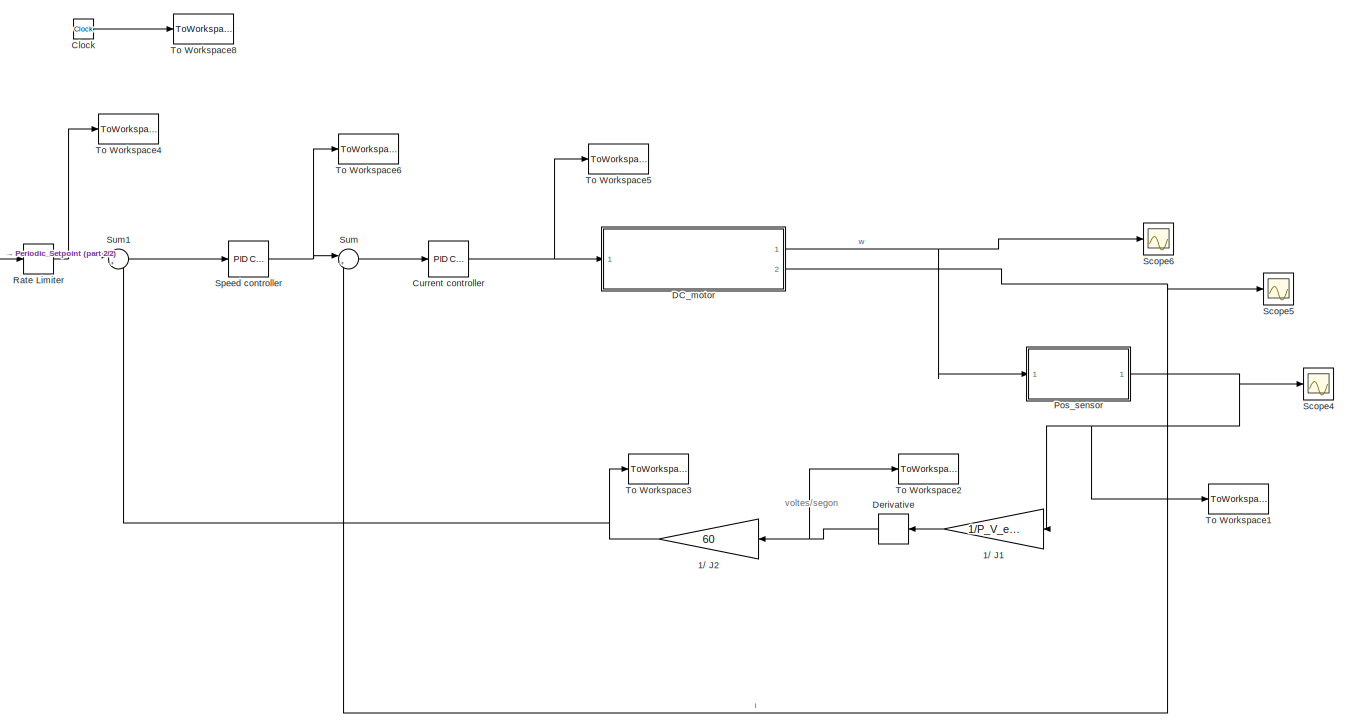
[diagram: root canvas - part 1/2, most of the canvas]
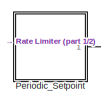
[diagram: root canvas - part 2/2, middle left region]
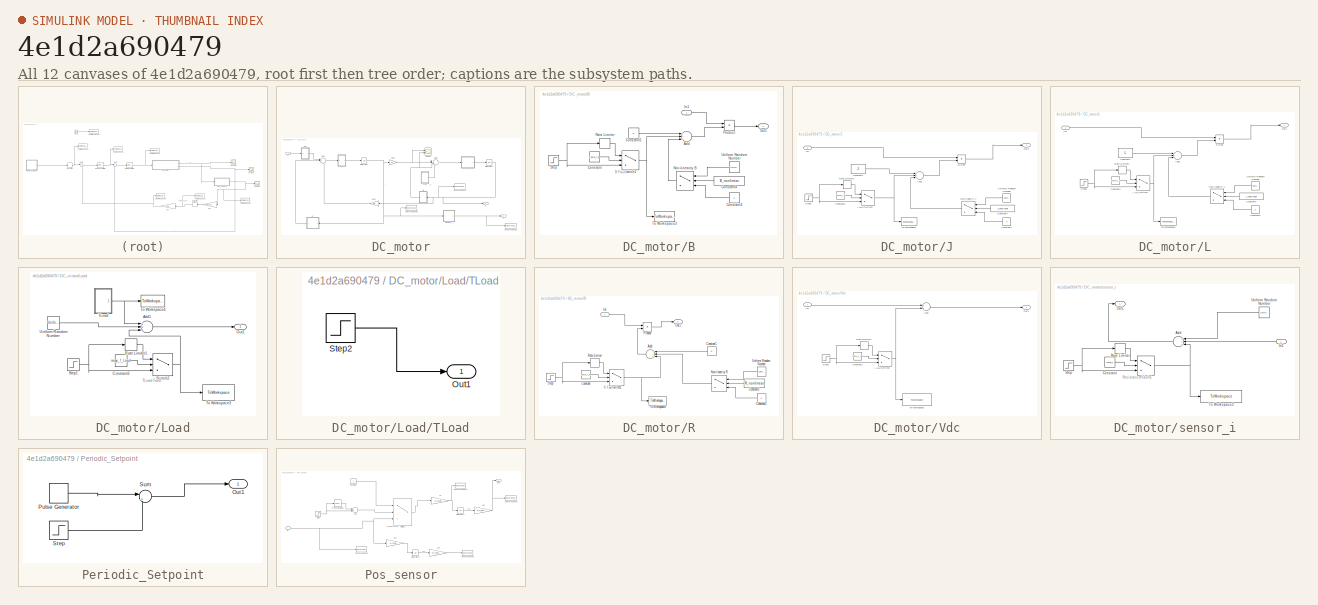
[diagram: thumbnail index - all 12 canvases of the model, root first then tree order]
MODEL slx_4e1d2a690479
KIND model
CONFIG AbsTol = auto
CONFIG EnableMultiTasking = off
CONFIG FixedStep = auto
CONFIG MaxStep = auto
CONFIG MinStep = auto
CONFIG RelTol = 1e-3
CONFIG SampleTimeConstraint = Unconstrained
CONFIG Solver = VariableStepAuto
CONFIG SolverName = VariableStepAuto
CONFIG StartTime = 0.0
CONFIG StopTime = 100
BLOCK [Gain] 1// J1
  Gain = 1/P_V_encoder
  OutDataTypeStr = Inherit: Inherit via internal rule
  ParamDataTypeStr = Inherit: Inherit via internal rule
  SaturateOnIntegerOverflow = off
BLOCK [Gain] 1// J2
  Gain = 60
  OutDataTypeStr = Inherit: Inherit via internal rule
  ParamDataTypeStr = Inherit: Inherit via internal rule
  SaturateOnIntegerOverflow = off
BLOCK [Clock] Clock
BLOCK [Reference] Current controller  REF=simulink/Continuous/PID Controller
  Ports = [1, 1]
  SourceBlock = simulink/Continuous/PID Controller
  SourceProductBaseCode = SL
  SourceProductName = Simulink
  SourceType = PID 1dof
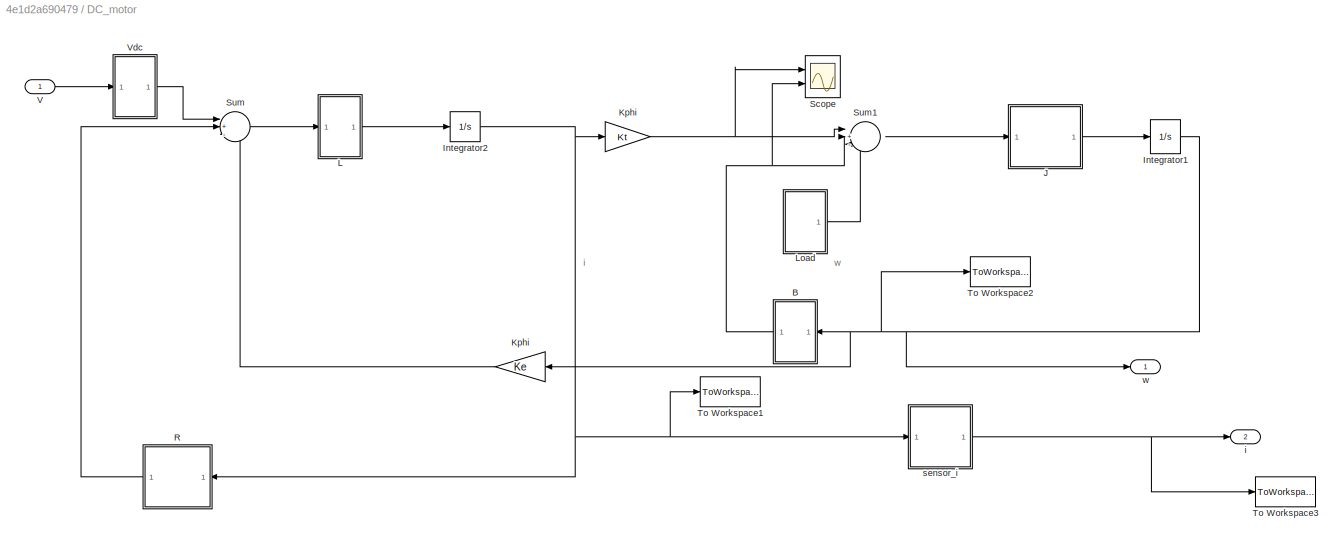
BLOCK [SubSystem] DC_motor
  Ports = [1, 2]
  RequestExecContextInheritance = off
BLOCK [SubSystem] DC_motor/B
  Ports = [1, 1]
  RequestExecContextInheritance = off
  Tag = R
BLOCK [Sum] DC_motor/B/Add
  InputSameDT = off
  Inputs = +++
  OutDataTypeStr = Inherit: Inherit via internal rule
  Ports = [3, 1]
  SaturateOnIntegerOverflow = off
BLOCK [Constant] DC_motor/B/Constant
  Value = ramp_f_B
BLOCK [Constant] DC_motor/B/Constant1
  Value = b
BLOCK [Constant] DC_motor/B/Constant3
  Value = 0
BLOCK [Constant] DC_motor/B/Constant4
  Value = B_nonlinear
BLOCK [Inport] DC_motor/B/In1
  IconDisplay = Port number
BLOCK [Switch] DC_motor/B/Non-linearity B
  Criteria = u2 > Threshold
  InputSameDT = off
  SaturateOnIntegerOverflow = off
BLOCK [Outport] DC_motor/B/Out1
  IconDisplay = Port number
BLOCK [Product] DC_motor/B/Product
  InputSameDT = off
  OutDataTypeStr = Inherit: Inherit via internal rule
  Ports = [2, 1]
  RndMeth = Floor
  SaturateOnIntegerOverflow = off
BLOCK [RateLimiter] DC_motor/B/Rate Limiter
  FallingSlewLimit = -vel_B*b
  RisingSlewLimit = vel_B*b
  SampleTimeMode = inherited
BLOCK [Step] DC_motor/B/Step
  After = B_fault
  SampleTime = Tsd
  Tag = Rpm Sensor Flow
  Time = t_fault
BLOCK [Switch] DC_motor/B/Switch1
  Criteria = u2 > Threshold
  InputSameDT = off
  SaturateOnIntegerOverflow = off
BLOCK [ToWorkspace] DC_motor/B/To Workspace3
  FixptAsFi = on
  MaxDataPoints = inf
  Ports = [1]
  SampleTime = Tsd
  VariableName = V_B_fault
BLOCK [UniformRandomNumber] DC_motor/B/Uniform Random Number
  Maximum = tol_B*b
  Minimum = -tol_B*b
  SampleTime = Tsd
BLOCK [Integrator] DC_motor/Integrator1
  Ports = [1, 1]
BLOCK [Integrator] DC_motor/Integrator2
  Ports = [1, 1]
BLOCK [SubSystem] DC_motor/J
  Ports = [1, 1]
  RequestExecContextInheritance = off
BLOCK [Sum] DC_motor/J/Add1
  InputSameDT = off
  Inputs = +++
  OutDataTypeStr = Inherit: Inherit via internal rule
  Ports = [3, 1]
  SaturateOnIntegerOverflow = off
BLOCK [Constant] DC_motor/J/Constant1
  Value = J
BLOCK [Constant] DC_motor/J/Constant2
  Value = ramp_f_J
BLOCK [Constant] DC_motor/J/Constant3
  Value = 0
BLOCK [Constant] DC_motor/J/Constant4
  Value = J_nonlinear
BLOCK [Product] DC_motor/J/Divide
  InputSameDT = off
  Inputs = */
  OutDataTypeStr = Inherit: Inherit via internal rule
  Ports = [2, 1]
  RndMeth = Floor
  SaturateOnIntegerOverflow = off
BLOCK [Inport] DC_motor/J/In1
  IconDisplay = Port number
BLOCK [Switch] DC_motor/J/Non-linearity J
  Criteria = u2 > Threshold
  InputSameDT = off
  SaturateOnIntegerOverflow = off
BLOCK [Outport] DC_motor/J/Out1
  IconDisplay = Port number
BLOCK [RateLimiter] DC_motor/J/Rate Limiter1
  FallingSlewLimit = -vel_J*J
  RisingSlewLimit = vel_J*J
  SampleTimeMode = inherited
BLOCK [Step] DC_motor/J/Step1
  After = J_fault
  SampleTime = Tsc
  Tag = Rpm Sensor Flow
  Time = t_fault
BLOCK [Switch] DC_motor/J/Switch2
  Criteria = u2 > Threshold
  InputSameDT = off
  SaturateOnIntegerOverflow = off
BLOCK [ToWorkspace] DC_motor/J/To Workspace3
  FixptAsFi = on
  MaxDataPoints = inf
  Ports = [1]
  SampleTime = Tsd
  VariableName = V_J_fault
BLOCK [UniformRandomNumber] DC_motor/J/Uniform Random Number
  Maximum = tol_J*J
  Minimum = -tol_J*J
  SampleTime = Tsd
BLOCK [Gain] DC_motor/Kphi
  Gain = Kt
  OutDataTypeStr = Inherit: Inherit via internal rule
  ParamDataTypeStr = Inherit: Inherit via internal rule
  SaturateOnIntegerOverflow = off
BLOCK [Gain] DC_motor/Kphi 
  Gain = Ke
  OutDataTypeStr = Inherit: Inherit via internal rule
  ParamDataTypeStr = Inherit: Inherit via internal rule
  SaturateOnIntegerOverflow = off
BLOCK [SubSystem] DC_motor/L
  Ports = [1, 1]
  RequestExecContextInheritance = off
BLOCK [Sum] DC_motor/L/Add1
  InputSameDT = off
  Inputs = +++
  OutDataTypeStr = Inherit: Inherit via internal rule
  Ports = [3, 1]
  SaturateOnIntegerOverflow = off
BLOCK [Constant] DC_motor/L/Constant1
  Value = L
BLOCK [Constant] DC_motor/L/Constant2
  Value = ramp_f_L
BLOCK [Constant] DC_motor/L/Constant3
  Value = 0
BLOCK [Constant] DC_motor/L/Constant4
  Value = L_nonlinear
BLOCK [Product] DC_motor/L/Divide
  InputSameDT = off
  Inputs = */
  OutDataTypeStr = Inherit: Inherit via internal rule
  Ports = [2, 1]
  RndMeth = Floor
  SaturateOnIntegerOverflow = off
BLOCK [Inport] DC_motor/L/In1
  IconDisplay = Port number
BLOCK [Switch] DC_motor/L/Non-linearity L
  Criteria = u2 > Threshold
  InputSameDT = off
  SaturateOnIntegerOverflow = off
BLOCK [Outport] DC_motor/L/Out1
  IconDisplay = Port number
BLOCK [RateLimiter] DC_motor/L/Rate Limiter1
  FallingSlewLimit = -vel_L*L
  RisingSlewLimit = vel_L*L
  SampleTimeMode = inherited
BLOCK [Step] DC_motor/L/Step1
  After = L_fault
  SampleTime = Tsc
  Tag = Rpm Sensor Flow
  Time = t_fault
BLOCK [Switch] DC_motor/L/Switch2
  Criteria = u2 > Threshold
  InputSameDT = off
  SaturateOnIntegerOverflow = off
BLOCK [ToWorkspace] DC_motor/L/To Workspace3
  FixptAsFi = on
  MaxDataPoints = inf
  Ports = [1]
  SampleTime = Tsd
  VariableName = V_L_fault
BLOCK [UniformRandomNumber] DC_motor/L/Uniform Random Number
  Maximum = tol_L*L
  Minimum = -tol_L*L
  SampleTime = Tsd
BLOCK [SubSystem] DC_motor/Load
  Ports = [0, 1]
  RequestExecContextInheritance = off
BLOCK [Sum] DC_motor/Load/Add1
  InputSameDT = off
  Inputs = +++
  OutDataTypeStr = Inherit: Inherit via internal rule
  Ports = [3, 1]
  SaturateOnIntegerOverflow = off
BLOCK [Constant] DC_motor/Load/Constant2
  Value = ramp_f_Load
BLOCK [Outport] DC_motor/Load/Out1
  IconDisplay = Port number
BLOCK [RateLimiter] DC_motor/Load/Rate Limiter1
  FallingSlewLimit = -vel_Load*Load_fault
  RisingSlewLimit = vel_Load*Load_fault
  SampleTimeMode = inherited
BLOCK [Step] DC_motor/Load/Step1
  After = Load_fault
  SampleTime = Tsd
  Tag = Rpm Sensor Flow
  Time = t_fault
BLOCK [Switch] DC_motor/Load/Switch2
  Criteria = u2 > Threshold
  InputSameDT = off
  SaturateOnIntegerOverflow = off
BLOCK [SubSystem] DC_motor/Load/TLoad
  Ports = [0, 1]
  RequestExecContextInheritance = off
BLOCK [Outport] DC_motor/Load/TLoad/Out1
  IconDisplay = Port number
BLOCK [Step] DC_motor/Load/TLoad/Step2
  After = 0
  SampleTime = Tsd
  Tag = Rpm Sensor Flow
BLOCK [ToWorkspace] DC_motor/Load/To Workspace3
  FixptAsFi = on
  MaxDataPoints = inf
  Ports = [1]
  SampleTime = Tsd
  VariableName = V_Load_fault
BLOCK [ToWorkspace] DC_motor/Load/To Workspace4
  FixptAsFi = on
  MaxDataPoints = inf
  Ports = [1]
  SampleTime = Tsd
  VariableName = Tload
BLOCK [UniformRandomNumber] DC_motor/Load/Uniform Random Number
  Maximum = delta_load
  Minimum = -delta_load
  SampleTime = Tsd
BLOCK [SubSystem] DC_motor/R
  Ports = [1, 1]
  RequestExecContextInheritance = off
  Tag = R
BLOCK [Sum] DC_motor/R/Add
  InputSameDT = off
  Inputs = +++
  OutDataTypeStr = Inherit: Inherit via internal rule
  Ports = [3, 1]
  SaturateOnIntegerOverflow = off
BLOCK [Constant] DC_motor/R/Constant
  Value = ramp_f_R
BLOCK [Constant] DC_motor/R/Constant1
  Value = R
BLOCK [Constant] DC_motor/R/Constant2
  Value = 0
BLOCK [Constant] DC_motor/R/Constant3
  Value = R_nonlinear
BLOCK [Inport] DC_motor/R/In1
  IconDisplay = Port number
BLOCK [Switch] DC_motor/R/Non-linearity R
  Criteria = u2 > Threshold
  InputSameDT = off
  SaturateOnIntegerOverflow = off
BLOCK [Outport] DC_motor/R/Out1
  IconDisplay = Port number
BLOCK [Product] DC_motor/R/Product
  InputSameDT = off
  OutDataTypeStr = Inherit: Inherit via internal rule
  Ports = [2, 1]
  RndMeth = Floor
  SaturateOnIntegerOverflow = off
BLOCK [RateLimiter] DC_motor/R/Rate Limiter
  FallingSlewLimit = -vel_R
  RisingSlewLimit = vel_R
  SampleTimeMode = inherited
BLOCK [Step] DC_motor/R/Step
  After = R_fault
  SampleTime = Tsc
  Tag = Rpm Sensor Flow
  Time = t_fault
BLOCK [Switch] DC_motor/R/Switch1
  Criteria = u2 > Threshold
  InputSameDT = off
  SaturateOnIntegerOverflow = off
BLOCK [ToWorkspace] DC_motor/R/To Workspace3
  FixptAsFi = on
  MaxDataPoints = inf
  Ports = [1]
  SampleTime = Tsd
  VariableName = V_R_fault
BLOCK [UniformRandomNumber] DC_motor/R/Uniform Random Number
  Maximum = tol_R*R
  Minimum = -tol_R*R
  SampleTime = Tsd
BLOCK [Scope] DC_motor/Scope
  Floating = off
  NumInputPorts = 2
  Ports = [2]
  ScopeSpecificationString = Simulink.scopes.TimeScopeBlockCfg('CurrentConfiguration', extmgr.ConfigurationSet(extmgr.Configuration('Core','General UI',true),extmgr.Configuration('Core','Source UI',true),extmgr.Configuration('Sources','WiredSimulink',true,'DataLoggingVariableName','ScopeData1'),extmgr.Configuration('Visuals','Time Domain',true,'SerializedDisplays',{struct('MinYLimReal','-0.327','MaxYLimReal','0.38541','YLabel...<+1714ch>
BLOCK [Sum] DC_motor/Sum
  IconShape = round
  InputSameDT = off
  Inputs = |+--
  OutDataTypeStr = Inherit: Inherit via internal rule
  Ports = [3, 1]
  SaturateOnIntegerOverflow = off
BLOCK [Sum] DC_motor/Sum1
  IconShape = round
  InputSameDT = off
  Inputs = |+--
  OutDataTypeStr = Inherit: Inherit via internal rule
  Ports = [3, 1]
  SaturateOnIntegerOverflow = off
BLOCK [ToWorkspace] DC_motor/To Workspace1
  FixptAsFi = on
  MaxDataPoints = inf
  Ports = [1]
  SampleTime = Tsd
  VariableName = i
BLOCK [ToWorkspace] DC_motor/To Workspace2
  FixptAsFi = on
  MaxDataPoints = inf
  Ports = [1]
  SampleTime = Tsd
  VariableName = w_rads
BLOCK [ToWorkspace] DC_motor/To Workspace3
  FixptAsFi = on
  MaxDataPoints = inf
  Ports = [1]
  SampleTime = Tsd
  VariableName = i_m
BLOCK [Inport] DC_motor/V
  IconDisplay = Port number
BLOCK [SubSystem] DC_motor/Vdc
  Ports = [1, 1]
  RequestExecContextInheritance = off
BLOCK [Sum] DC_motor/Vdc/Add1
  InputSameDT = off
  OutDataTypeStr = Inherit: Inherit via internal rule
  Ports = [2, 1]
  SaturateOnIntegerOverflow = off
BLOCK [Constant] DC_motor/Vdc/Constant2
  Value = ramp_f_Vdc
BLOCK [Inport] DC_motor/Vdc/In1
  IconDisplay = Port number
BLOCK [Outport] DC_motor/Vdc/Out1
  IconDisplay = Port number
BLOCK [RateLimiter] DC_motor/Vdc/Rate Limiter1
  FallingSlewLimit = -vel_Vdc
  RisingSlewLimit = vel_Vdc
  SampleTimeMode = inherited
BLOCK [Step] DC_motor/Vdc/Step1
  After = Vdc_fault
  SampleTime = Tsc
  Tag = Rpm Sensor Flow
  Time = t_fault
BLOCK [Switch] DC_motor/Vdc/Switch2
  Criteria = u2 > Threshold
  InputSameDT = off
  SaturateOnIntegerOverflow = off
BLOCK [ToWorkspace] DC_motor/Vdc/To Workspace3
  FixptAsFi = on
  MaxDataPoints = inf
  Ports = [1]
  SampleTime = Tsd
  VariableName = V_Vdc_fault
BLOCK [Outport] DC_motor/i
  IconDisplay = Port number
  Port = 2
BLOCK [SubSystem] DC_motor/sensor_i
  Ports = [1, 1]
  RequestExecContextInheritance = off
  Tag = R
BLOCK [Sum] DC_motor/sensor_i/Add
  InputSameDT = off
  Inputs = +++
  OutDataTypeStr = Inherit: Inherit via internal rule
  Ports = [3, 1]
  SaturateOnIntegerOverflow = off
BLOCK [Constant] DC_motor/sensor_i/Constant
  Value = ramp_i
BLOCK [Inport] DC_motor/sensor_i/In1
  IconDisplay = Port number
BLOCK [Outport] DC_motor/sensor_i/Out1
  IconDisplay = Port number
BLOCK [RateLimiter] DC_motor/sensor_i/Rate Limiter
  FallingSlewLimit = -vel_i
  RisingSlewLimit = vel_i
  SampleTimeMode = inherited
BLOCK [Step] DC_motor/sensor_i/Step
  After = f_i
  SampleTime = Tsc
  Tag = Rpm Sensor Flow
  Time = t_fault
BLOCK [Switch] DC_motor/sensor_i/Switch1
  Criteria = u2 > Threshold
  InputSameDT = off
  SaturateOnIntegerOverflow = off
BLOCK [ToWorkspace] DC_motor/sensor_i/To Workspace3
  FixptAsFi = on
  MaxDataPoints = inf
  Ports = [1]
  SampleTime = Tsd
  VariableName = V_isensor_fault
BLOCK [UniformRandomNumber] DC_motor/sensor_i/Uniform Random Number
  Maximum = noise_amp
  Minimum = -noise_amp
  SampleTime = Tsd
BLOCK [Outport] DC_motor/w
  IconDisplay = Port number
BLOCK [Derivative] Derivative
BLOCK [SubSystem] Periodic_Setpoint
  Ports = [0, 1]
  RequestExecContextInheritance = off
BLOCK [Outport] Periodic_Setpoint/Out1
  IconDisplay = Port number
BLOCK [DiscretePulseGenerator] Periodic_Setpoint/Pulse Generator
  Amplitude = 300
  Period = 10
  PhaseDelay = 5
  Ports = [0, 1]
  PulseType = Time based
  PulseWidth = 50
BLOCK [Step] Periodic_Setpoint/Step
  After = 20
  Before = 20
  SampleTime = 0
BLOCK [Sum] Periodic_Setpoint/Sum
  IconShape = round
  InputSameDT = off
  Inputs = |++
  OutDataTypeStr = Inherit: Inherit via internal rule
  Ports = [2, 1]
  SaturateOnIntegerOverflow = off
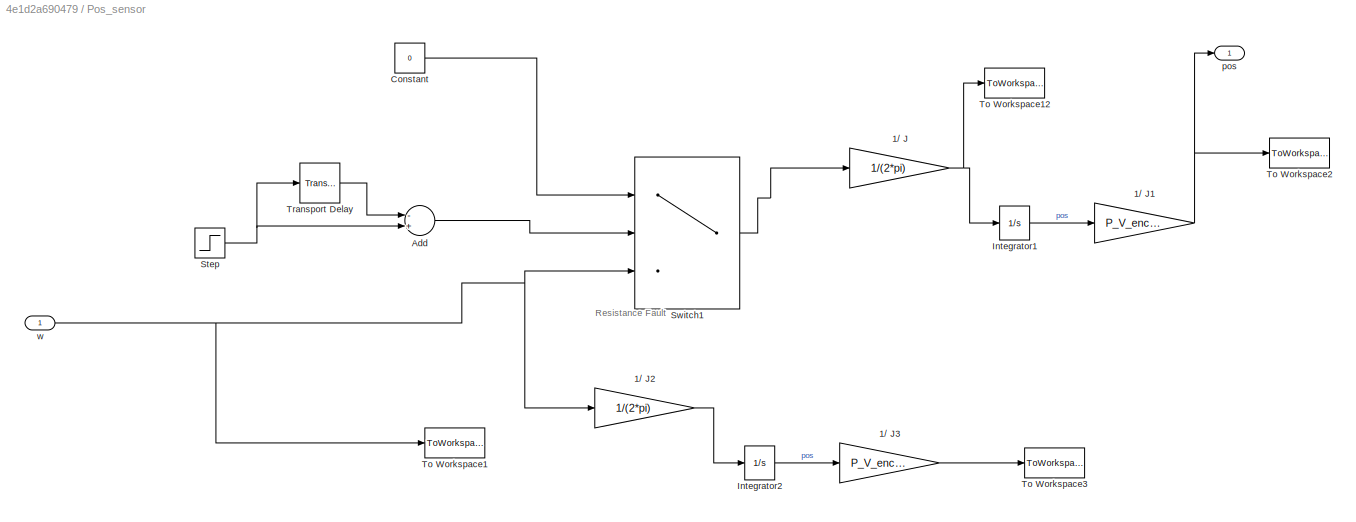
BLOCK [SubSystem] Pos_sensor
  Ports = [1, 1]
  RequestExecContextInheritance = off
BLOCK [Gain] Pos_sensor/1// J
  Gain = 1/(2*pi)
  OutDataTypeStr = Inherit: Inherit via internal rule
  ParamDataTypeStr = Inherit: Inherit via internal rule
  SaturateOnIntegerOverflow = off
BLOCK [Gain] Pos_sensor/1// J1
  Gain = P_V_encoder
  OutDataTypeStr = Inherit: Inherit via internal rule
  ParamDataTypeStr = Inherit: Inherit via internal rule
  SaturateOnIntegerOverflow = off
BLOCK [Gain] Pos_sensor/1// J2
  Gain = 1/(2*pi)
  OutDataTypeStr = Inherit: Inherit via internal rule
  ParamDataTypeStr = Inherit: Inherit via internal rule
  SaturateOnIntegerOverflow = off
BLOCK [Gain] Pos_sensor/1// J3
  Gain = P_V_encoder
  OutDataTypeStr = Inherit: Inherit via internal rule
  ParamDataTypeStr = Inherit: Inherit via internal rule
  SaturateOnIntegerOverflow = off
BLOCK [Sum] Pos_sensor/Add
  InputSameDT = off
  Inputs = -+
  OutDataTypeStr = Inherit: Inherit via internal rule
  Ports = [2, 1]
  SaturateOnIntegerOverflow = off
BLOCK [Constant] Pos_sensor/Constant
  Value = 0
BLOCK [Integrator] Pos_sensor/Integrator1
  Ports = [1, 1]
BLOCK [Integrator] Pos_sensor/Integrator2
  Ports = [1, 1]
BLOCK [Step] Pos_sensor/Step
  After = pos_stuck
  SampleTime = Tsc
  Tag = Rpm Sensor Flow
  Time = t_fault
BLOCK [Switch] Pos_sensor/Switch1
  Criteria = u2 > Threshold
  InputSameDT = off
  SaturateOnIntegerOverflow = off
BLOCK [ToWorkspace] Pos_sensor/To Workspace1
  FixptAsFi = on
  MaxDataPoints = inf
  Ports = [1]
  SampleTime = Tsd
  VariableName = vel_s_pos1
BLOCK [ToWorkspace] Pos_sensor/To Workspace12
  FixptAsFi = on
  MaxDataPoints = inf
  Ports = [1]
  SampleTime = Tsd
  VariableName = vel_s_pos
BLOCK [ToWorkspace] Pos_sensor/To Workspace2
  FixptAsFi = on
  MaxDataPoints = inf
  Ports = [1]
  SampleTime = Tsd
  VariableName = theta_est_p
BLOCK [ToWorkspace] Pos_sensor/To Workspace3
  FixptAsFi = on
  MaxDataPoints = inf
  Ports = [1]
  SampleTime = Tsd
  VariableName = theta_real_p
BLOCK [TransportDelay] Pos_sensor/Transport Delay
  DelayTime = stuck_duration
  Ports = [1, 1]
BLOCK [Outport] Pos_sensor/pos
  IconDisplay = Port number
BLOCK [Inport] Pos_sensor/w 
  IconDisplay = Port number
BLOCK [RateLimiter] Rate Limiter
  FallingSlewLimit = -500
  RisingSlewLimit = 500
  SampleTimeMode = inherited
BLOCK [Scope] Scope4
  Floating = off
  NumInputPorts = 1
  Ports = [1]
  ScopeSpecificationString = Simulink.scopes.TimeScopeBlockCfg('CurrentConfiguration', extmgr.ConfigurationSet(extmgr.Configuration('Core','General UI',true),extmgr.Configuration('Core','Source UI',true),extmgr.Configuration('Sources','WiredSimulink',true,'DataLoggingVariableName','ScopeData4'),extmgr.Configuration('Visuals','Time Domain',true,'SerializedDisplays',{struct('MinYLimReal','-36245.68967','MaxYLimReal','326211.207...<+1434ch>
BLOCK [Scope] Scope5
  Floating = off
  NumInputPorts = 1
  Ports = [1]
  ScopeSpecificationString = Simulink.scopes.TimeScopeBlockCfg('CurrentConfiguration', extmgr.ConfigurationSet(extmgr.Configuration('Core','General UI',true),extmgr.Configuration('Core','Source UI',true),extmgr.Configuration('Sources','WiredSimulink',true),extmgr.Configuration('Visuals','Time Domain',true,'SerializedDisplays',{struct('MinYLimReal','-0.59654','MaxYLimReal','0.58066','YLabelReal','','MinYLimMag','0.00000','MaxY...<+1350ch>
BLOCK [Scope] Scope6
  Floating = off
  NumInputPorts = 1
  Ports = [1]
  ScopeSpecificationString = Simulink.scopes.TimeScopeBlockCfg('CurrentConfiguration', extmgr.ConfigurationSet(extmgr.Configuration('Core','General UI',true),extmgr.Configuration('Core','Source UI',true),extmgr.Configuration('Sources','WiredSimulink',true,'DataLoggingVariableName','ScopeData5'),extmgr.Configuration('Visuals','Time Domain',true,'SerializedDisplays',{struct('MinYLimReal','-4.30001','MaxYLimReal','38.70007','YLa...<+1399ch>
BLOCK [Reference] Speed controller  REF=simulink/Continuous/PID Controller
  Ports = [1, 1]
  SourceBlock = simulink/Continuous/PID Controller
  SourceProductBaseCode = SL
  SourceProductName = Simulink
  SourceType = PID 1dof
BLOCK [Sum] Sum
  IconShape = round
  InputSameDT = off
  Inputs = |+-
  OutDataTypeStr = Inherit: Inherit via internal rule
  Ports = [2, 1]
  SaturateOnIntegerOverflow = off
BLOCK [Sum] Sum1
  IconShape = round
  InputSameDT = off
  Inputs = |+-
  OutDataTypeStr = Inherit: Inherit via internal rule
  Ports = [2, 1]
  SaturateOnIntegerOverflow = off
BLOCK [ToWorkspace] To Workspace1
  FixptAsFi = on
  MaxDataPoints = inf
  Ports = [1]
  SampleTime = Tsd
  VariableName = theta
BLOCK [ToWorkspace] To Workspace2
  FixptAsFi = on
  MaxDataPoints = inf
  Ports = [1]
  SampleTime = Tsd
  VariableName = w_est
BLOCK [ToWorkspace] To Workspace3
  FixptAsFi = on
  MaxDataPoints = inf
  Ports = [1]
  SampleTime = Tsd
  VariableName = w_est_rpm
BLOCK [ToWorkspace] To Workspace4
  FixptAsFi = on
  MaxDataPoints = inf
  Ports = [1]
  SampleTime = Tsd
  VariableName = r_w
BLOCK [ToWorkspace] To Workspace5
  FixptAsFi = on
  MaxDataPoints = inf
  Ports = [1]
  SampleTime = Tsd
  VariableName = V
BLOCK [ToWorkspace] To Workspace6
  FixptAsFi = on
  MaxDataPoints = inf
  Ports = [1]
  SampleTime = Tsd
  VariableName = r_i
BLOCK [ToWorkspace] To Workspace8
  FixptAsFi = on
  MaxDataPoints = inf
  Ports = [1]
  SampleTime = Tsd
  VariableName = t
ANNOTATION (root): voltes/segon
ANNOTATION DC_motor: i
ANNOTATION DC_motor: w
ANNOTATION DC_motor/B: B Fault
ANNOTATION DC_motor/J: J Fault
ANNOTATION DC_motor/L: L Fault
ANNOTATION DC_motor/Load: TLoad Fault
ANNOTATION DC_motor/R: R Fault
ANNOTATION DC_motor/Vdc: L Fault
ANNOTATION DC_motor/sensor_i: Resistance Fault
ANNOTATION Pos_sensor: Resistance Fault
LINE 1// J1:1 -> Derivative:1
NET 1// J2:1 -> Sum1:2, To Workspace3:1
LINE Clock:1 -> To Workspace8:1
NET Current controller:1 -> DC_motor:1, To Workspace5:1
LINE DC_motor/B/Add:1 -> DC_motor/B/Product:2
LINE DC_motor/B/Constant1:1 -> DC_motor/B/Add:1
LINE DC_motor/B/Constant3:1 -> DC_motor/B/Non-linearity B:3
LINE DC_motor/B/Constant4:1 -> DC_motor/B/Non-linearity B:2
LINE DC_motor/B/Constant:1 -> DC_motor/B/Switch1:2
LINE DC_motor/B/In1:1 -> DC_motor/B/Product:1
LINE DC_motor/B/Non-linearity B:1 -> DC_motor/B/Add:3
LINE DC_motor/B/Product:1 -> DC_motor/B/Out1:1
LINE DC_motor/B/Rate Limiter:1 -> DC_motor/B/Switch1:1
NET DC_motor/B/Step:1 -> DC_motor/B/Rate Limiter:1, DC_motor/B/Switch1:3
NET DC_motor/B/Switch1:1 -> DC_motor/B/Add:2, DC_motor/B/To Workspace3:1
LINE DC_motor/B/Uniform Random Number:1 -> DC_motor/B/Non-linearity B:1
NET DC_motor/B:1 -> DC_motor/Scope:2, DC_motor/Sum1:2
NET DC_motor/Integrator1:1 -> DC_motor/B:1, DC_motor/Kphi :1, DC_motor/To Workspace2:1, DC_motor/w:1
NET DC_motor/Integrator2:1 -> DC_motor/Kphi:1, DC_motor/R:1, DC_motor/To Workspace1:1, DC_motor/sensor_i:1
LINE DC_motor/J/Add1:1 -> DC_motor/J/Divide:2
LINE DC_motor/J/Constant1:1 -> DC_motor/J/Add1:1
LINE DC_motor/J/Constant2:1 -> DC_motor/J/Switch2:2
LINE DC_motor/J/Constant3:1 -> DC_motor/J/Non-linearity J:3
LINE DC_motor/J/Constant4:1 -> DC_motor/J/Non-linearity J:2
LINE DC_motor/J/Divide:1 -> DC_motor/J/Out1:1
LINE DC_motor/J/In1:1 -> DC_motor/J/Divide:1
LINE DC_motor/J/Non-linearity J:1 -> DC_motor/J/Add1:3
LINE DC_motor/J/Rate Limiter1:1 -> DC_motor/J/Switch2:1
NET DC_motor/J/Step1:1 -> DC_motor/J/Rate Limiter1:1, DC_motor/J/Switch2:3
NET DC_motor/J/Switch2:1 -> DC_motor/J/Add1:2, DC_motor/J/To Workspace3:1
LINE DC_motor/J/Uniform Random Number:1 -> DC_motor/J/Non-linearity J:1
LINE DC_motor/J:1 -> DC_motor/Integrator1:1
LINE DC_motor/Kphi :1 -> DC_motor/Sum:3
NET DC_motor/Kphi:1 -> DC_motor/Scope:1, DC_motor/Sum1:1
LINE DC_motor/L/Add1:1 -> DC_motor/L/Divide:2
LINE DC_motor/L/Constant1:1 -> DC_motor/L/Add1:1
LINE DC_motor/L/Constant2:1 -> DC_motor/L/Switch2:2
LINE DC_motor/L/Constant3:1 -> DC_motor/L/Non-linearity L:3
LINE DC_motor/L/Constant4:1 -> DC_motor/L/Non-linearity L:2
LINE DC_motor/L/Divide:1 -> DC_motor/L/Out1:1
LINE DC_motor/L/In1:1 -> DC_motor/L/Divide:1
LINE DC_motor/L/Non-linearity L:1 -> DC_motor/L/Add1:3
LINE DC_motor/L/Rate Limiter1:1 -> DC_motor/L/Switch2:1
NET DC_motor/L/Step1:1 -> DC_motor/L/Rate Limiter1:1, DC_motor/L/Switch2:3
NET DC_motor/L/Switch2:1 -> DC_motor/L/Add1:2, DC_motor/L/To Workspace3:1
LINE DC_motor/L/Uniform Random Number:1 -> DC_motor/L/Non-linearity L:1
LINE DC_motor/L:1 -> DC_motor/Integrator2:1
LINE DC_motor/Load/Add1:1 -> DC_motor/Load/Out1:1
LINE DC_motor/Load/Constant2:1 -> DC_motor/Load/Switch2:2
LINE DC_motor/Load/Rate Limiter1:1 -> DC_motor/Load/Switch2:1
NET DC_motor/Load/Step1:1 -> DC_motor/Load/Rate Limiter1:1, DC_motor/Load/Switch2:3
NET DC_motor/Load/Switch2:1 -> DC_motor/Load/Add1:3, DC_motor/Load/To Workspace3:1
LINE DC_motor/Load/TLoad/Step2:1 -> DC_motor/Load/TLoad/Out1:1
NET DC_motor/Load/TLoad:1 -> DC_motor/Load/Add1:1, DC_motor/Load/To Workspace4:1
LINE DC_motor/Load/Uniform Random Number:1 -> DC_motor/Load/Add1:2
LINE DC_motor/Load:1 -> DC_motor/Sum1:3
LINE DC_motor/R/Add:1 -> DC_motor/R/Product:2
LINE DC_motor/R/Constant1:1 -> DC_motor/R/Add:1
LINE DC_motor/R/Constant2:1 -> DC_motor/R/Non-linearity R:3
LINE DC_motor/R/Constant3:1 -> DC_motor/R/Non-linearity R:2
LINE DC_motor/R/Constant:1 -> DC_motor/R/Switch1:2
LINE DC_motor/R/In1:1 -> DC_motor/R/Product:1
LINE DC_motor/R/Non-linearity R:1 -> DC_motor/R/Add:2
LINE DC_motor/R/Product:1 -> DC_motor/R/Out1:1
LINE DC_motor/R/Rate Limiter:1 -> DC_motor/R/Switch1:1
NET DC_motor/R/Step:1 -> DC_motor/R/Rate Limiter:1, DC_motor/R/Switch1:3
NET DC_motor/R/Switch1:1 -> DC_motor/R/Add:3, DC_motor/R/To Workspace3:1
LINE DC_motor/R/Uniform Random Number:1 -> DC_motor/R/Non-linearity R:1
LINE DC_motor/R:1 -> DC_motor/Sum:2
LINE DC_motor/Sum1:1 -> DC_motor/J:1
LINE DC_motor/Sum:1 -> DC_motor/L:1
LINE DC_motor/V:1 -> DC_motor/Vdc:1
LINE DC_motor/Vdc/Add1:1 -> DC_motor/Vdc/Out1:1
LINE DC_motor/Vdc/Constant2:1 -> DC_motor/Vdc/Switch2:2
LINE DC_motor/Vdc/In1:1 -> DC_motor/Vdc/Add1:1
LINE DC_motor/Vdc/Rate Limiter1:1 -> DC_motor/Vdc/Switch2:1
NET DC_motor/Vdc/Step1:1 -> DC_motor/Vdc/Rate Limiter1:1, DC_motor/Vdc/Switch2:3
NET DC_motor/Vdc/Switch2:1 -> DC_motor/Vdc/Add1:2, DC_motor/Vdc/To Workspace3:1
LINE DC_motor/Vdc:1 -> DC_motor/Sum:1
LINE DC_motor/sensor_i/Add:1 -> DC_motor/sensor_i/Out1:1
LINE DC_motor/sensor_i/Constant:1 -> DC_motor/sensor_i/Switch1:2
LINE DC_motor/sensor_i/In1:1 -> DC_motor/sensor_i/Add:2
LINE DC_motor/sensor_i/Rate Limiter:1 -> DC_motor/sensor_i/Switch1:1
NET DC_motor/sensor_i/Step:1 -> DC_motor/sensor_i/Rate Limiter:1, DC_motor/sensor_i/Switch1:3
NET DC_motor/sensor_i/Switch1:1 -> DC_motor/sensor_i/Add:3, DC_motor/sensor_i/To Workspace3:1
LINE DC_motor/sensor_i/Uniform Random Number:1 -> DC_motor/sensor_i/Add:1
NET DC_motor/sensor_i:1 -> DC_motor/To Workspace3:1, DC_motor/i:1
NET DC_motor:1 -> Pos_sensor:1, Scope6:1
NET DC_motor:2 -> Scope5:1, Sum:2
NET Derivative:1 -> 1// J2:1, To Workspace2:1
LINE Periodic_Setpoint/Pulse Generator:1 -> Periodic_Setpoint/Sum:1
LINE Periodic_Setpoint/Step:1 -> Periodic_Setpoint/Sum:2
LINE Periodic_Setpoint/Sum:1 -> Periodic_Setpoint/Out1:1
LINE Periodic_Setpoint:1 -> Rate Limiter:1
NET Pos_sensor/1// J1:1 -> Pos_sensor/To Workspace2:1, Pos_sensor/pos:1
LINE Pos_sensor/1// J2:1 -> Pos_sensor/Integrator2:1
LINE Pos_sensor/1// J3:1 -> Pos_sensor/To Workspace3:1
NET Pos_sensor/1// J:1 -> Pos_sensor/Integrator1:1, Pos_sensor/To Workspace12:1
LINE Pos_sensor/Add:1 -> Pos_sensor/Switch1:2
LINE Pos_sensor/Constant:1 -> Pos_sensor/Switch1:1
LINE Pos_sensor/Integrator1:1 -> Pos_sensor/1// J1:1
LINE Pos_sensor/Integrator2:1 -> Pos_sensor/1// J3:1
NET Pos_sensor/Step:1 -> Pos_sensor/Add:2, Pos_sensor/Transport Delay:1
LINE Pos_sensor/Switch1:1 -> Pos_sensor/1// J:1
LINE Pos_sensor/Transport Delay:1 -> Pos_sensor/Add:1
NET Pos_sensor/w :1 -> Pos_sensor/1// J2:1, Pos_sensor/Switch1:3, Pos_sensor/To Workspace1:1
NET Pos_sensor:1 -> 1// J1:1, Scope4:1, To Workspace1:1
NET Rate Limiter:1 -> Sum1:1, To Workspace4:1
NET Speed controller:1 -> Sum:1, To Workspace6:1
LINE Sum1:1 -> Speed controller:1
LINE Sum:1 -> Current controller:1
note: NET lines group one-source signal fan-out (src -> all destinations, sorted); 1:1 wires keep LINE
